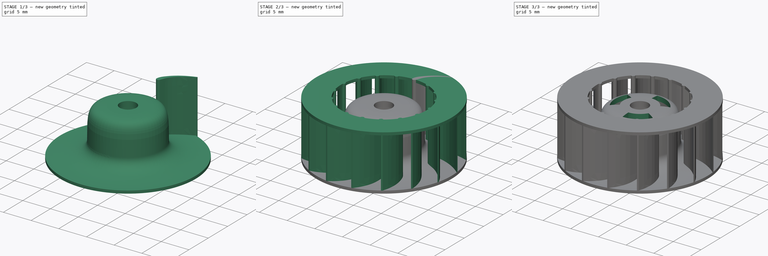
[diagram: build sequence overview — one tinted view per stage of 3, left to right]
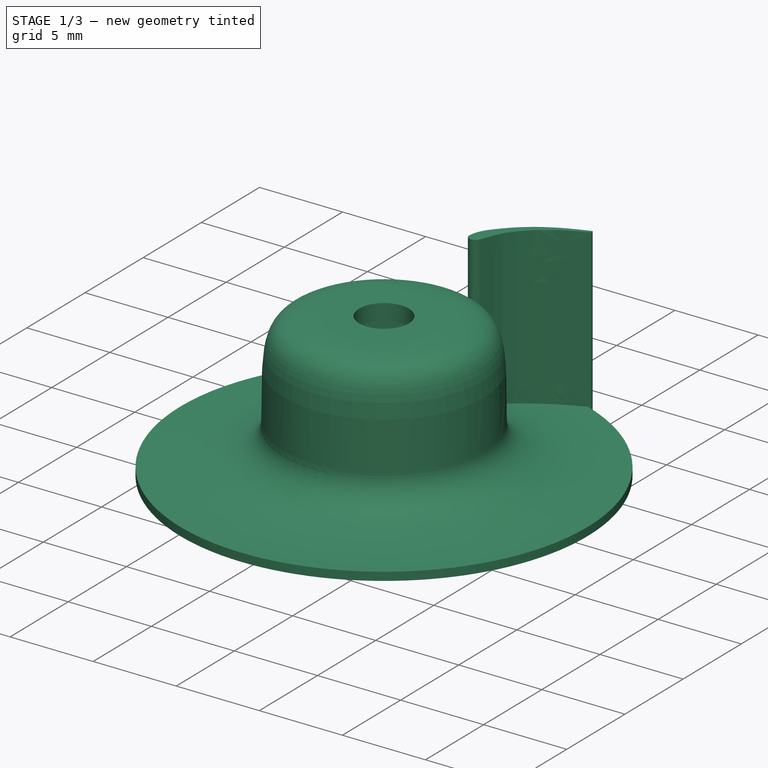
[diagram: stage 1 of 3 — iso view after this stage's code; geometry added in this stage tinted green]
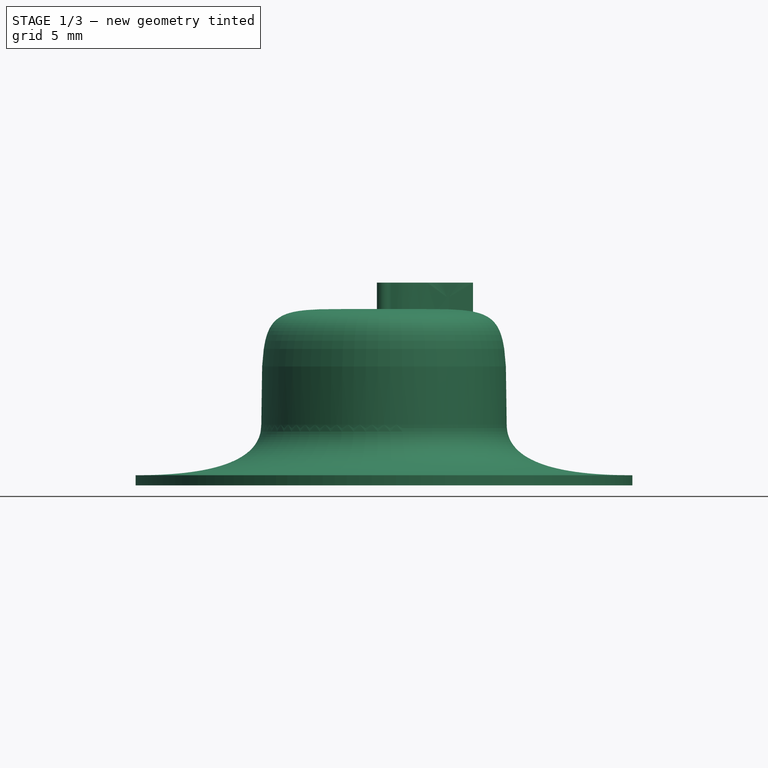
[diagram: stage 1 of 3 — front view after this stage's code; geometry added in this stage tinted green]
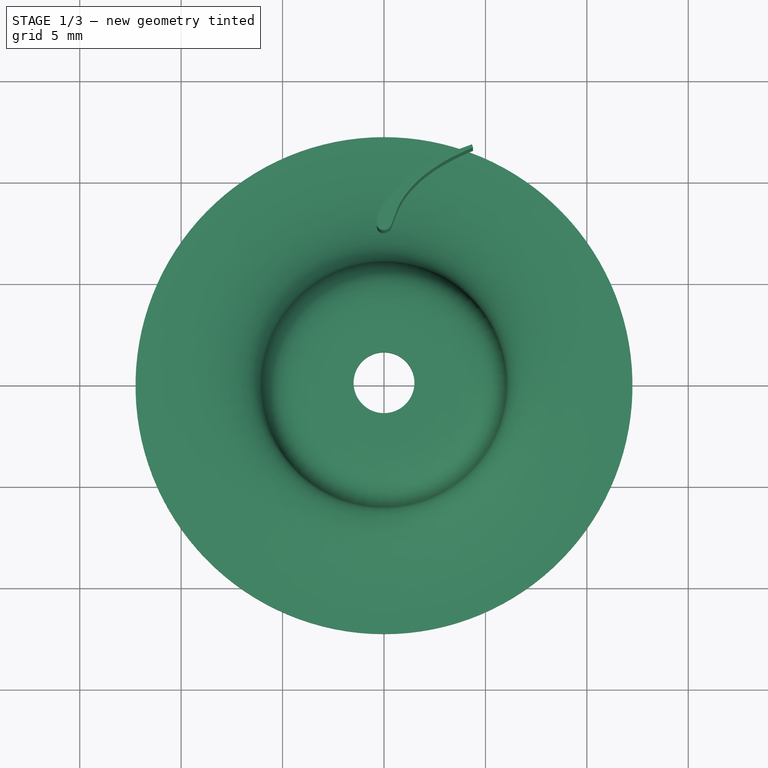
[diagram: stage 1 of 3 — top view after this stage's code; geometry added in this stage tinted green]
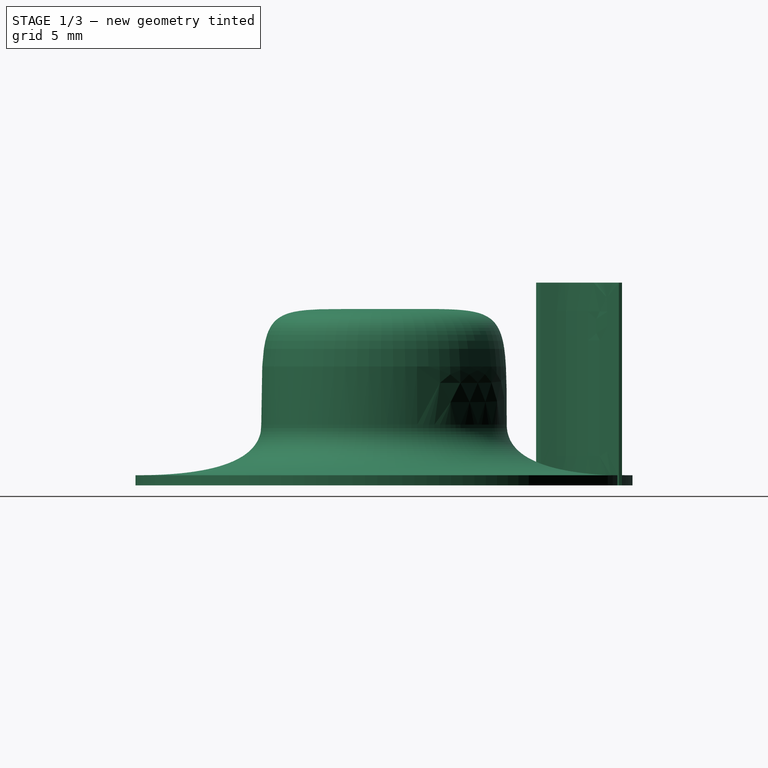
[diagram: stage 1 of 3 — right view after this stage's code; geometry added in this stage tinted green]
FCSTD DOCUMENT  (FreeCAD 0.18.1R)
Label: Turbine
License: All rights reserved
LicenseURL: http://en.wikipedia.org/wiki/All_rights_reserved
objects: Sketcher::SketchObject×5, PartDesign::Pad×2, PartDesign::PolarPattern×2, PartDesign::Pocket×2, PartDesign::Revolution×1, Spreadsheet::Sheet×1, PartDesign::Body×1
note: 18 computed .brp shape members not serialized (recipe doc carries the construction recipe); baked Part::Feature solids carry a one-line shape summary decoded from their .brp

FEATURE [Sketcher::SketchObject] Sketch
  MapMode = 5
  Placement = pos=(0,0,0) rot=(0.57735,0.57735,0.57735;2.0944rad)
  Support = -> [YZ_Plane]
  expr: Constraints[5] = Spreadsheet.Diametre_Turbine / 2
  sketch-geometry (20):
    g0: LineSegment StartX=5.05 StartY=7.7 StartZ=0 EndX=5.05 EndY=2.5 EndZ=0
    g1: LineSegment StartX=5.05 StartY=7.7 StartZ=0 EndX=1.5 EndY=7.7 EndZ=0
    g2: LineSegment StartX=12.25 StartY=0.5 StartZ=0 EndX=12.25 EndY=0 EndZ=0
    g3: LineSegment StartX=12.25 StartY=0 StartZ=0 EndX=8.02938 EndY=0 EndZ=0
    g4: LineSegment StartX=1.5 StartY=7.7 StartZ=0 EndX=1.5 EndY=8.7 EndZ=0
    g5: Circle [constr] CenterX=6.05 CenterY=3 CenterZ=0 NormalX=0 NormalY=0 NormalZ=1 AngleXU=0 Radius=0.4
    g6: Circle [constr] CenterX=6.05 CenterY=0.5 CenterZ=0 NormalX=0 NormalY=0 NormalZ=1 AngleXU=0 Radius=0.4
    g7: Circle [constr] CenterX=12.25 CenterY=0.5 CenterZ=0 NormalX=0 NormalY=0 NormalZ=1 AngleXU=0 Radius=0.4
    g8: BSplineCurve PolesCount=3 KnotsCount=2 Degree=2 IsPeriodic=0
    g9: GeomPoint [constr] X=6.05 Y=3 Z=0
    g10: GeomPoint [constr] X=12.25 Y=0.5 Z=0
    g11-g14: Circle [constr] x4 (B-spline internal-alignment scaffolding for g15; pole/knot coordinates omitted)
    g15: BSplineCurve PolesCount=4 KnotsCount=2 Degree=3 IsPeriodic=0
    g16: GeomPoint [constr] X=6.05 Y=3 Z=0
    g17: GeomPoint [constr] X=1.5 Y=8.7 Z=0
    g18: LineSegment [constr] StartX=5.05 StartY=2.5 StartZ=0 EndX=8.02938 EndY=0 EndZ=0
    g19: ArcOfCircle CenterX=9.50059 CenterY=4.77866 CenterZ=0 NormalX=0 NormalY=0 NormalZ=1 AngleXU=0 Radius=5 StartAngle=3.61479 EndAngle=4.41373
  constraints (47):
    c: Vertical(g0)
    c: Vertical(g2)
    c: Coincident(g3,g2)
    c: Horizontal(g3)
    c: DistanceY(g2,g2) = 0.5
    c: DistanceX(g-2,g2) = 12.25
    c: DistanceX(g-1,g1) = 1.5
    c: Coincident(g4,g1)
    c: Vertical(g4)
    c: DistanceY(g4,g4) = 1
    c: Radius(g5) = 0.4
    c: Equal(g5,g6)
    c: Equal(g5,g7)
    c: Coincident(g8,g2)
    c: InternalAlignment(g5,g8)
    c: InternalAlignment(g6,g8)
    c: InternalAlignment(g7,g8)
    c: InternalAlignment(g9,g8)
    c: InternalAlignment(g10,g8)
    c: Vertical(g6,g8)
    c: Distance(g8,g0) = 1
    c: Horizontal(g6,g2)
    c: DistanceY(g-1,g8) = 3
    c: Coincident(g1,g0)
    c: Horizontal(g1)
    c: Radius(g11) = 0.8
    c: Equal(g11,g12)
    c: Equal(g11,g13)
    c: Equal(g11,g14)
    c: InternalAlignment(g11-g14 -> g15) x4
    c: InternalAlignment(g16,g15)
    c: InternalAlignment(g17,g15)
    c: Coincident(g15,g8)
    c: Vertical(g12,g8)
    c: Coincident(g15,g4)
    c: Horizontal(g13,g4)
    c: Coincident(g13,g12)
    c: Angle(g3,g18) = 2.44346
    c: Coincident(g0,g18)
    c: Coincident(g3,g18)
    c: PointOnObject(g3,g-1)
    c: Distance(g-1,g0) = 5.05
    c: DistanceY(g-1,g0) = 2.5
    c: Distance(g0,g1) = 5.2
    c: Coincident(g19,g0)
    c: Coincident(g19,g3)
    c: Radius(g19) = 5
FEATURE [PartDesign::Revolution] Revolution
  Angle = 360
  Axis = (-2e-16,3e-16,1)
  Base = (0,0,0)
  Placement = pos=(0,0,0) rot=(0.57735,0.57735,0.57735;2.0944rad)
  Profile = -> Sketch
  ReferenceAxis = -> Sketch [V_Axis]
  Reversed = true
FEATURE [Sketcher::SketchObject] Sketch002
  MapMode = 5
  Placement = pos=(0,0,10) rot=(0.707107,0.707107,0;3.14159rad)
  expr: Constraints[2] = Spreadsheet.Diametre_Entree_Air / 2
  expr: Constraints[3] = Spreadsheet.Diametre_Turbine / 2
  sketch-geometry (2):
    g0: Circle CenterX=0 CenterY=0 CenterZ=0 NormalX=0 NormalY=0 NormalZ=1 AngleXU=0 Radius=7.75
    g1: Circle CenterX=0 CenterY=0 CenterZ=0 NormalX=0 NormalY=0 NormalZ=1 AngleXU=0 Radius=12.25
  constraints (4):
    c: Coincident(g0,g-1)
    c: Coincident(g1,g0)
    c: Radius(g0) = 7.75
    c: Radius(g1) = 12.25
FEATURE [Sketcher::SketchObject] Sketch003
  MapMode = 5
  expr: Constraints[2] = Spreadsheet.Diametre_Turbine / 2
  sketch-geometry (2):
    g0: Circle CenterX=0 CenterY=0 CenterZ=0 NormalX=0 NormalY=0 NormalZ=1 AngleXU=0 Radius=12.25
    g1: Circle CenterX=0 CenterY=0 CenterZ=0 NormalX=0 NormalY=0 NormalZ=1 AngleXU=0 Radius=20
  constraints (4):
    c: Coincident(g0,g-1)
    c: Coincident(g1,g0)
    c: Radius(g0) = 12.25
    c: Radius(g1) = 20
FEATURE [Sketcher::SketchObject] Sketch004
  MapMode = 5
  sketch-geometry (6):
    g0: ArcOfCircle CenterX=0 CenterY=0 CenterZ=0 NormalX=0 NormalY=0 NormalZ=1 AngleXU=0 Radius=4.5 StartAngle=0.523599 EndAngle=1.5708
    g1: ArcOfCircle CenterX=0 CenterY=0 CenterZ=0 NormalX=0 NormalY=0 NormalZ=1 AngleXU=0 Radius=3 StartAngle=0.523599 EndAngle=1.5708
    g2: LineSegment StartX=3e-16 StartY=4.5 StartZ=0 EndX=2e-16 EndY=3 EndZ=0
    g3: LineSegment StartX=2.59808 StartY=1.5 StartZ=0 EndX=3.89711 EndY=2.25 EndZ=0
    g4: LineSegment [constr] StartX=0 StartY=0 StartZ=0 EndX=2e-16 EndY=3 EndZ=0
    g5: LineSegment [constr] StartX=0 StartY=0 StartZ=0 EndX=2.59808 EndY=1.5 EndZ=0
  constraints (16):
    c: Coincident(g0,g-1)
    c: Coincident(g1,g0)
    c: Coincident(g2,g0)
    c: Coincident(g2,g1)
    c: Coincident(g3,g1)
    c: Coincident(g4,g0)
    c: Coincident(g4,g1)
    c: Coincident(g5,g0)
    c: Coincident(g5,g1)
    c: Parallel(g4,g2)
    c: Parallel(g5,g3)
    c: Radius(g1) = 3
    c: Radius(g0) = 4.5
    c: PointOnObject(g0,g-2)
    c: Angle(g3,g2) = 1.0472
    c: Coincident(g0,g3)
FEATURE [Spreadsheet::Sheet] Spreadsheet
  cells = B1=Developpante; B2=Angle; C2(Angles_Developpante)=7.2; B3=Diamètre d'entrée d'air; C3(Diametre_Entree_Air)=15.5; B4=Diamètre Turbine; C4(Diametre_Turbine)=24.5; B5=Distance 1; C5(Distance_1_Developpante)==D5 * 3.14159265 / 180 * C3 / 2 - C20 / 2; D5==C2; B6=Distance 2; C6(Distance_2_Developpante)==D6 * 3.14159265 / 180 * C3 / 2 - C21 / 2; D6==C2 + D5; B7=Distance 3; C7(Distance_3_Developpante)==D7 * 3.14159265 / 180 * C3 / 2 - C22 / 2; D7==C2 + D6; B8=Distance 4; C8(Distance_4_Developpante)==D8 * 3.14159265 / 180 * C3 / 2 - C23 / 2; D8==C2 + D7; B9=Distance 5; C9(Distance_5_Developpante)==D9 * 3.14159265 / 180 * C3 / 2 - C24 / 2; D9==C2 + D8; B10=Distance 6; C10(Distance_6_Developpante)==D10 * 3.14159265 / 180 * C3 / 2 - C25 / 2; D10==C2 + D9; B11=Distance 7; C11(Distance_7_Developpante)==D11 * 3.14159265 / 180 * C3 / 2 - C26 / 2; D11==C2 + D10; B12=Distance 8; C12(Distance_8_Developpante)==D12 * 3.14159265 / 180 * C3 / 2 - C27 / 2; D12==C2 + D11; B13=Distance 9; C13(Distance_9_Developpante)==D13 * 3.14159265 / 180 * C3 / 2 - C28 / 2; D13==C2 + D12; B14=Distance 10; C14(Distance_10_Developpante)==D14 * 3.14159265 / 180 * C3 / 2 - C29 / 2; D14==C2 + D13; B15=Distance Max à respecter; C15==sqrt(pow(C4 / 2; 2) - pow(C3 / 2; 2)); B17=Profil; B19=Epaisseur Bord d'attaque; C19=0.8; E19=Profil; B20=Epaisseur 1; C20(Epaisseur_1)==C19 * E20; E20=0.9; B21=Epaisseur 2; C21(Epaisseur_2)==C19 * E21; E21=0.95; B22=Epaisseur 3; C22(Epaisseur_3)==C19 * E22; E22=1; B23=Epaisseur 4; C23(Epaisseur_4)==C19 * E23; E23=0.9; B24=Epaisseur 5; C24(Epaisseur_5)==C19 * E24; E24=0.7; B25=Epaisseur 6; C25(Epaisseur_6)==C19 * E25; E25=0.6; B26=Epaisseur 7; C26(Epaisseur_7)==C19 * E26; E26=0.5; B27=Epaisseur 8; C27(Epaisseur_8)==C19 * E27; E27=0.4; B28=Epaisseur 9; C28(Epaisseur_9)==C19 * E28; E28=0.3; B29=Epaisseur 10; C29(Epaisseur_10)==C19 * E29; E29=0.2
FEATURE [Sketcher::SketchObject] Sketch005
  MapMode = 5
  Support = -> [XY_Plane]
  expr: Constraints[14] = Spreadsheet.Distance_3_Developpante
  expr: Constraints[2] = Spreadsheet.Diametre_Turbine / 2
  expr: Constraints[46] = Spreadsheet.Distance_8_Developpante
  expr: Constraints[60] = Spreadsheet.Distance_2_Developpante
  expr: Constraints[55] = Spreadsheet.Angles_Developpante
  expr: Constraints[32] = Spreadsheet.Angles_Developpante
  expr: Constraints[33] = Spreadsheet.Angles_Developpante
  expr: Constraints[34] = Spreadsheet.Angles_Developpante
  expr: Constraints[56] = Spreadsheet.Angles_Developpante
  expr: Constraints[36] = Spreadsheet.Distance_4_Developpante
  expr: Constraints[57] = Spreadsheet.Angles_Developpante
  expr: Constraints[95] = Spreadsheet.Distance_7_Developpante + Spreadsheet.Epaisseur_7
  expr: Constraints[37] = Spreadsheet.Distance_5_Developpante
  expr: Constraints[47] = Spreadsheet.Distance_9_Developpante
  expr: Constraints[39] = Spreadsheet.Distance_7_Developpante
  expr: Constraints[38] = Spreadsheet.Distance_6_Developpante
  expr: Constraints[61] = Spreadsheet.Distance_1_Developpante
  expr: Constraints[54] = Spreadsheet.Distance_10_Developpante
  expr: Constraints[71] = Spreadsheet.Distance_1_Developpante + Spreadsheet.Epaisseur_1
  expr: Constraints[91] = Spreadsheet.Distance_3_Developpante + Spreadsheet.Epaisseur_3
  expr: Constraints[11] = Spreadsheet.Angles_Developpante
  expr: Constraints[93] = Spreadsheet.Distance_5_Developpante + Spreadsheet.Epaisseur_5
  expr: Constraints[15] = Spreadsheet.Angles_Developpante
  expr: Constraints[92] = Spreadsheet.Distance_4_Developpante + Spreadsheet.Epaisseur_4
  expr: Constraints[35] = Spreadsheet.Angles_Developpante
  expr: Constraints[94] = Spreadsheet.Distance_6_Developpante + Spreadsheet.Epaisseur_6
  expr: Constraints[3] = Spreadsheet.Diametre_Entree_Air / 2
  expr: Constraints[96] = Spreadsheet.Distance_8_Developpante + Spreadsheet.Epaisseur_8
  expr: Constraints[10] = Spreadsheet.Angles_Developpante
  expr: Constraints[97] = Spreadsheet.Distance_9_Developpante + Spreadsheet.Epaisseur_9
  expr: Constraints[89] = Spreadsheet.Distance_2_Developpante + Spreadsheet.Epaisseur_2
  expr: Constraints[98] = Spreadsheet.Distance_10_Developpante + Spreadsheet.Epaisseur_10
  sketch-geometry (80):
    g0: Circle [constr] CenterX=0 CenterY=0 CenterZ=0 NormalX=0 NormalY=0 NormalZ=1 AngleXU=0 Radius=7.75
    g1: Circle [constr] CenterX=0 CenterY=0 CenterZ=0 NormalX=0 NormalY=0 NormalZ=1 AngleXU=0 Radius=12.25
    g2: LineSegment [constr] StartX=0 StartY=0 StartZ=0 EndX=1.92735 EndY=7.50652 EndZ=0
    g3: LineSegment [constr] StartX=0 StartY=0 StartZ=0 EndX=0.971333 EndY=7.68889 EndZ=0
    g4: LineSegment [constr] StartX=0 StartY=0 StartZ=0 EndX=2.85297 EndY=7.20577 EndZ=0
    g5: LineSegment [constr] StartX=2.85297 StartY=7.20577 StartZ=0 EndX=0.508365 EndY=8.13406 EndZ=0
    g6: LineSegment [constr] StartX=0 StartY=0 StartZ=0 EndX=3.73359 EndY=6.79138 EndZ=0
    g7: LineSegment [constr] StartX=3.73359 StartY=6.79138 StartZ=0 EndX=0.635343 EndY=8.49465 EndZ=0
    g8: LineSegment [constr] StartX=0 StartY=0 StartZ=0 EndX=4.55534 EndY=6.26988 EndZ=0
    g9: LineSegment [constr] StartX=4.55534 StartY=6.26988 StartZ=0 EndX=0.842378 EndY=8.9675 EndZ=0
    g10: LineSegment [constr] StartX=0 StartY=0 StartZ=0 EndX=5.30524 EndY=5.64951 EndZ=0
    g11: LineSegment [constr] StartX=5.30524 StartY=5.64951 StartZ=0 EndX=1.22056 EndY=9.48527 EndZ=0
    g12: LineSegment [constr] StartX=0 StartY=0 StartZ=0 EndX=5.97148 EndY=4.94004 EndZ=0
    g13: LineSegment [constr] StartX=5.97148 StartY=4.94004 StartZ=0 EndX=1.75348 EndY=10.0387 EndZ=0
    g14: LineSegment [constr] StartX=0 StartY=0 StartZ=0 EndX=7.01241 EndY=3.29979 EndZ=0
    g15: LineSegment [constr] StartX=0 StartY=0 StartZ=0 EndX=6.54354 EndY=4.15266 EndZ=0
    g16: LineSegment [constr] StartX=7.01241 StartY=3.29979 StartZ=0 EndX=3.33153 EndY=11.1221 EndZ=0
    g17: LineSegment [constr] StartX=6.54354 StartY=4.15266 StartZ=0 EndX=2.45457 EndY=10.5959 EndZ=0
    g18: LineSegment [constr] StartX=0 StartY=0 StartZ=0 EndX=7.37069 EndY=2.39488 EndZ=0
    g19: LineSegment [constr] StartX=7.37069 StartY=2.39488 StartZ=0 EndX=4.38591 EndY=11.5811 EndZ=0
    g20: LineSegment [constr] StartX=-0.327309 StartY=8.08542 StartZ=0 EndX=-0.352043 EndY=7.85607 EndZ=0
    g21: LineSegment [constr] StartX=0.971333 StartY=7.68889 StartZ=0 EndX=0.36228 EndY=7.76583 EndZ=0
    g22: LineSegment [constr] StartX=1.92735 StartY=7.50652 StartZ=0 EndX=0.408814 EndY=7.89641 EndZ=0
    g23: LineSegment [constr] StartX=0.408814 StartY=7.89641 StartZ=0 EndX=0.36228 EndY=7.76583 EndZ=0
    g24: ArcOfCircle CenterX=-0.029762 CenterY=7.82131 CenterZ=0 NormalX=0 NormalY=0 NormalZ=1 AngleXU=0 Radius=0.32415 StartAngle=3.03416 EndAngle=4.58673
    g25: ArcOfCircle CenterX=-0.0195808 CenterY=7.9019 CenterZ=0 NormalX=0 NormalY=0 NormalZ=1 AngleXU=0 Radius=0.405381 StartAngle=4.58672 EndAngle=5.94087
    g26: LineSegment [constr] StartX=-0.029762 StartY=7.82131 StartZ=0 EndX=-0.0703887 EndY=7.49972 EndZ=0
    g27: LineSegment [constr] StartX=0.971333 StartY=7.68889 StartZ=0 EndX=-0.352043 EndY=7.85607 EndZ=0
    g28: LineSegment [constr] StartX=1.92735 StartY=7.50652 StartZ=0 EndX=-0.327309 EndY=8.08542 EndZ=0
    g29: LineSegment [constr] StartX=2.85297 StartY=7.20577 StartZ=0 EndX=-0.235456 EndY=8.42856 EndZ=0
    g30: LineSegment [constr] StartX=3.73359 StartY=6.79138 StartZ=0 EndX=0.00440227 EndY=8.84152 EndZ=0
    g31: LineSegment [constr] StartX=4.55534 StartY=6.26988 StartZ=0 EndX=0.389328 EndY=9.29666 EndZ=0
    g32: LineSegment [constr] StartX=5.30524 StartY=5.64951 StartZ=0 EndX=0.87066 EndY=9.81385 EndZ=0
    g33: LineSegment [constr] StartX=5.97148 StartY=4.94004 StartZ=0 EndX=1.49851 EndY=10.3469 EndZ=0
    g34: LineSegment [constr] StartX=6.54354 StartY=4.15266 StartZ=0 EndX=2.2831 EndY=10.866 EndZ=0
    g35: LineSegment [constr] StartX=7.01241 StartY=3.29979 StartZ=0 EndX=3.22934 EndY=11.3392 EndZ=0
    g36: LineSegment [constr] StartX=7.37069 StartY=2.39488 StartZ=0 EndX=4.33647 EndY=11.7332 EndZ=0
    g37: GeomPoint X=0.36228 Y=7.76583 Z=0
    g38: GeomPoint X=0.36228 Y=7.76583 Z=0
    g39: GeomPoint X=0.408814 Y=7.89641 Z=0
    g40: GeomPoint X=0.408814 Y=7.89641 Z=0
    g41-g50: Circle [constr] x10 (B-spline internal-alignment scaffolding for g51; pole/knot coordinates omitted)
    g51: BSplineCurve PolesCount=10 KnotsCount=8 Degree=3 IsPeriodic=0
    g52-g59: GeomPoint [constr] x8 (B-spline internal-alignment scaffolding for g51; pole/knot coordinates omitted)
    g60-g69: Circle [constr] x10 (B-spline internal-alignment scaffolding for g70; pole/knot coordinates omitted)
    g70: BSplineCurve PolesCount=10 KnotsCount=8 Degree=3 IsPeriodic=0
    g71-g78: GeomPoint [constr] x8 (B-spline internal-alignment scaffolding for g70; pole/knot coordinates omitted)
    g79: LineSegment StartX=4.33647 StartY=11.7332 StartZ=0 EndX=4.38591 EndY=11.5811 EndZ=0
  constraints (156):
    c: Coincident(g0,g-1)
    c: Coincident(g1,g0)
    c: Radius(g1) = 12.25
    c: Radius(g0) = 7.75
    c: Coincident(g2,g-1)
    c: PointOnObject(g2,g0)
    c: Coincident(g3,g-1)
    c: PointOnObject(g3,g0)
    c: Coincident(g4,g3)
    c: PointOnObject(g4,g0)
    c: Angle(g3,g-2) = 0.125664
    c: Angle(g4,g2) = 0.125664
    c: Coincident(g5,g4)
    c: Perpendicular(g4,g5)
    c: Distance(g5) = 2.52168
    c: Angle(g2,g3) = 0.125664
    c: Coincident(g6,g-1)
    c: PointOnObject(g6,g0)
    c: Coincident(g7,g6)
    c: Coincident(g8,g6)
    c: PointOnObject(g8,g0)
    c: Coincident(g9,g8)
    c: Coincident(g10,g6)
    c: PointOnObject(g10,g0)
    c: Coincident(g11,g10)
    c: Coincident(g12,g6)
    c: PointOnObject(g12,g0)
    c: Coincident(g13,g12)
    c: Perpendicular(g6,g7)
    c: Perpendicular(g9,g8)
    c: Perpendicular(g11,g10)
    c: Perpendicular(g13,g12)
    c: Angle(g6,g4) = 0.125664
    c: Angle(g8,g6) = 0.125664
    c: Angle(g10,g8) = 0.125664
    c: Angle(g12,g10) = 0.125664
    c: Distance(g7) = 3.53557
    c: Distance(g9) = 4.58947
    c: Distance(g11) = 5.60336
    c: Distance(g13) = 6.61726
    c: Coincident(g14,g-1)
    c: PointOnObject(g14,g0)
    c: Coincident(g15,g14)
    c: PointOnObject(g15,g0)
    c: Coincident(g16,g14)
    c: Coincident(g17,g15)
    c: Distance(g17) = 7.63115
    c: Distance(g16) = 8.64504
    c: Perpendicular(g16,g14)
    c: Perpendicular(g17,g15)
    c: Coincident(g18,g-1)
    c: PointOnObject(g18,g0)
    c: Coincident(g19,g18)
    c: Perpendicular(g19,g18)
    c: Distance(g19) = 9.65894
    c: Angle(g15,g12) = 0.125664
    c: Angle(g14,g15) = 0.125664
    c: Angle(g18,g14) = 0.125664
    c: Coincident(g21,g3)
    c: Coincident(g22,g2)
    c: Distance(g22) = 1.56779
    c: Distance(g21) = 0.613894
    c: Perpendicular(g2,g22)
    c: Perpendicular(g21,g3)
    c: Coincident(g25,g24)
    c: Tangent(g24,g25)
    c: Tangent(g25,g23)
    c: Coincident(g26,g24)
    c: Coincident(g26,g24)
    c: Coincident(g27,g3)
    c: Perpendicular(g3,g27)
    c: Distance(g27) = 1.33389
    c: Coincident(g28,g2)
    c: Coincident(g29,g4)
    c: Coincident(g30,g6)
    c: Coincident(g31,g8)
    c: Coincident(g32,g10)
    c: Coincident(g33,g12)
    c: Coincident(g34,g15)
    c: Coincident(g35,g14)
    c: Coincident(g36,g18)
    c: Perpendicular(g4,g29)
    c: Perpendicular(g18,g36)
    c: Perpendicular(g14,g35)
    c: Perpendicular(g15,g34)
    c: Perpendicular(g30,g6)
    c: Perpendicular(g8,g31)
    c: Perpendicular(g10,g32)
    c: Perpendicular(g12,g33)
    c: Distance(g28) = 2.32779
    c: Perpendicular(g2,g28)
    c: Distance(g29) = 3.32168
    c: Distance(g30) = 4.25557
    c: Distance(g31) = 5.14947
    c: Distance(g32) = 6.08336
    c: Distance(g33) = 7.01726
    c: Distance(g34) = 7.95115
    c: Distance(g35) = 8.88504
    c: Distance(g36) = 9.81894
    c: Coincident(g25,g21)
    c: Coincident(g37,g25)
    c: Coincident(g38,g23)
    c: Coincident(g39,g23)
    c: Coincident(g40,g22)
    c: Coincident(g39,g40)
    c: Coincident(g38,g25)
    c: Coincident(g20,g27)
    c: Tangent(g24,g20) = -1.5708
    c: Coincident(g20,g28)
    c: Perpendicular(g27,g26)
    c: Coincident(g51,g25)
    c: Radius(g41) = 0.02
    c: Equal(g41,g42)
    c: Coincident(g42,g39)
    c: Equal(g41,g43)
    c: Coincident(g43,g5)
    c: Equal(g41,g44)
    c: Coincident(g44,g7)
    c: Equal(g41,g45)
    c: Coincident(g45,g9)
    c: Equal(g41,g46)
    c: Coincident(g46,g11)
    c: Equal(g41,g47)
    c: Coincident(g47,g13)
    c: Equal(g41,g48)
    c: Coincident(g48,g17)
    c: Equal(g41,g49)
    c: Coincident(g49,g16)
    c: Equal(g41,g50)
    c: Coincident(g51,g19)
    c: InternalAlignment(g41-g50 -> g51) x10
    c: InternalAlignment(g52-g59 -> g51) x8
    c: Coincident(g70,g24)
    c: Radius(g60) = 0.02
    c: Equal(g60,g61)
    c: Coincident(g61,g20)
    c: Equal(g60,g62)
    c: Coincident(g62,g29)
    c: Equal(g60,g63)
    c: Coincident(g63,g30)
    c: Equal(g60,g64)
    c: Coincident(g64,g31)
    c: Equal(g60,g65)
    c: Coincident(g65,g32)
    c: Equal(g60,g66)
    c: Coincident(g66,g33)
    c: Equal(g60,g67)
    c: Coincident(g67,g34)
    c: Equal(g60,g68)
    c: Coincident(g68,g35)
    c: Equal(g60,g69)
    c: Coincident(g70,g36)
    c: InternalAlignment(g60-g69 -> g70) x10
    c: InternalAlignment(g71-g78 -> g70) x8
    c: Coincident(g79,g70)
    c: Coincident(g79,g51)
FEATURE [PartDesign::Pad] Pad
  BaseFeature = -> Revolution
  Length = 10
  Length2 = 100
  Placement = pos=(0,0,0) rot=(0.57735,0.57735,0.57735;2.0944rad)
  Profile = -> Sketch005
  Type = 0
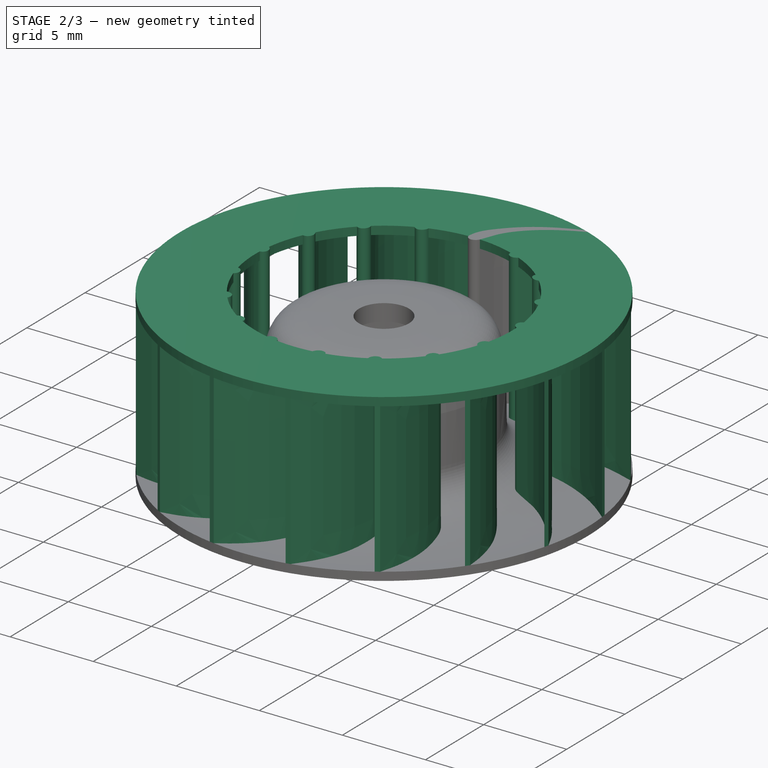
[diagram: stage 2 of 3 — iso view after this stage's code; geometry added in this stage tinted green]
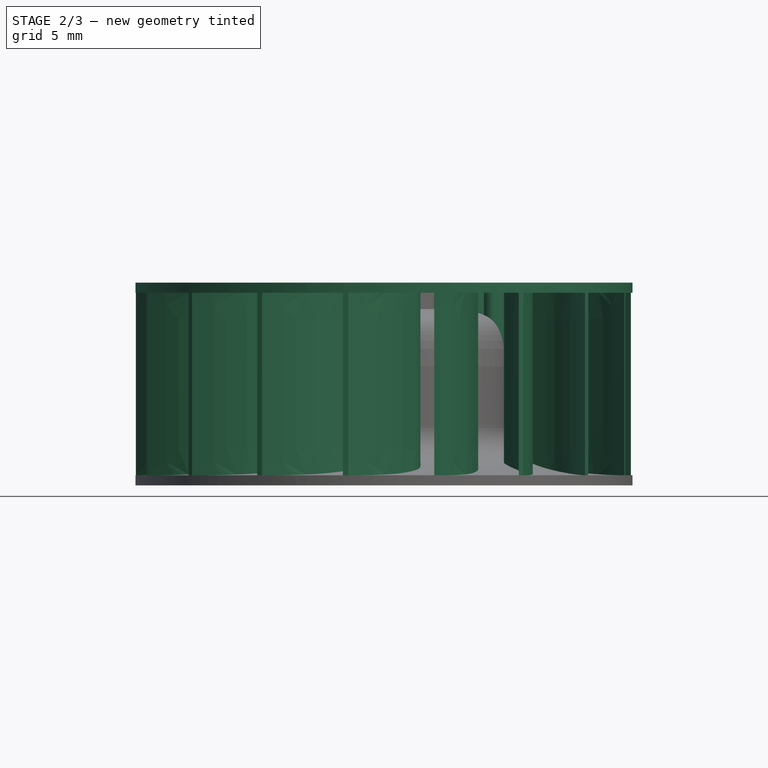
[diagram: stage 2 of 3 — front view after this stage's code; geometry added in this stage tinted green]
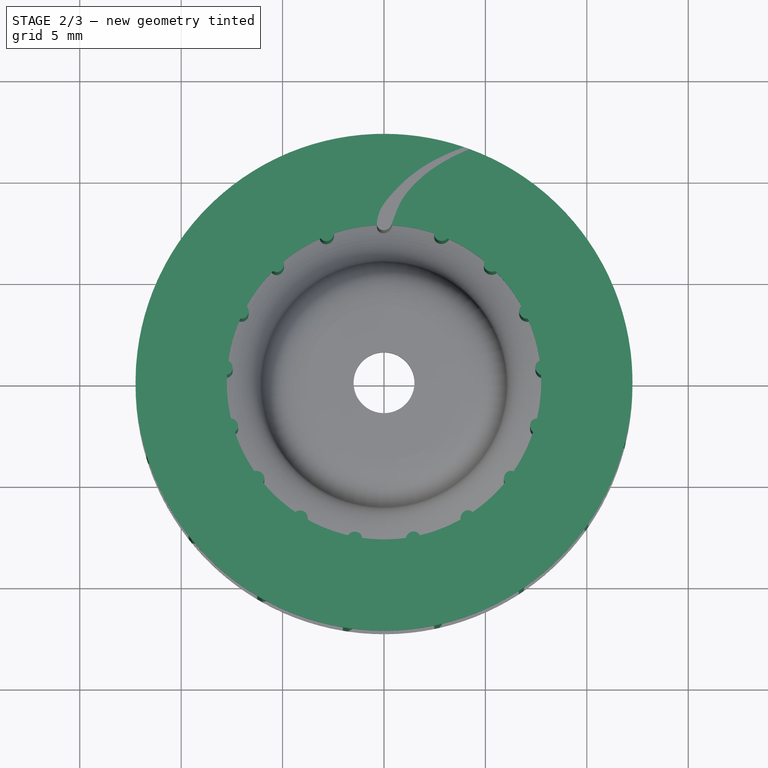
[diagram: stage 2 of 3 — top view after this stage's code; geometry added in this stage tinted green]
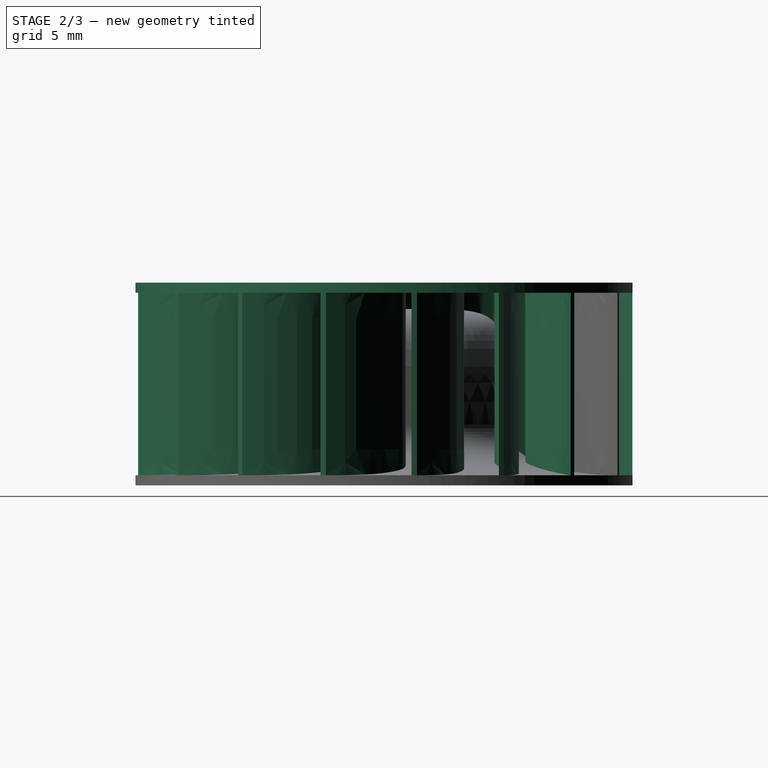
[diagram: stage 2 of 3 — right view after this stage's code; geometry added in this stage tinted green]
FEATURE [PartDesign::PolarPattern] PolarPattern
  Angle = 360
  Axis = -> Sketch005 [N_Axis]
  BaseFeature = -> Pad
  Occurrences = 17
  Originals = -> [Pad]
  Placement = pos=(0,0,0) rot=(0.57735,0.57735,0.57735;2.0944rad)
FEATURE [PartDesign::Pad] Pad001
  BaseFeature = -> PolarPattern
  Length = 0.5
  Length2 = 100
  Placement = pos=(0,0,0) rot=(0.57735,0.57735,0.57735;2.0944rad)
  Profile = -> Sketch002
  Type = 0
FEATURE [PartDesign::Pocket] Pocket
  BaseFeature = -> Pad001
  Length = 5
  Length2 = 100
  Placement = pos=(0,0,0) rot=(0.57735,0.57735,0.57735;2.0944rad)
  Profile = -> Sketch003
  Reversed = true
  Type = 1
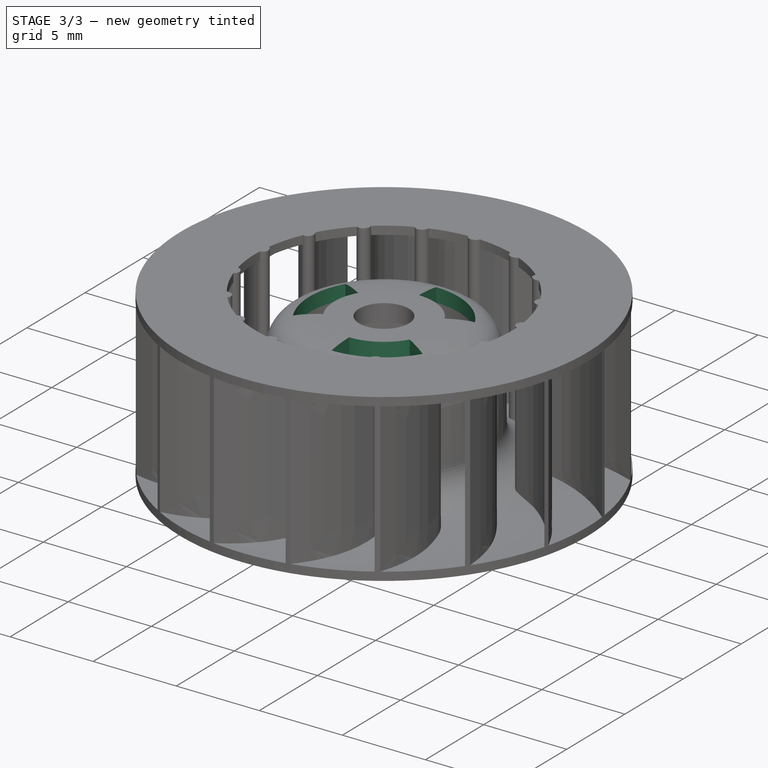
[diagram: stage 3 of 3 — iso view after this stage's code; geometry added in this stage tinted green]
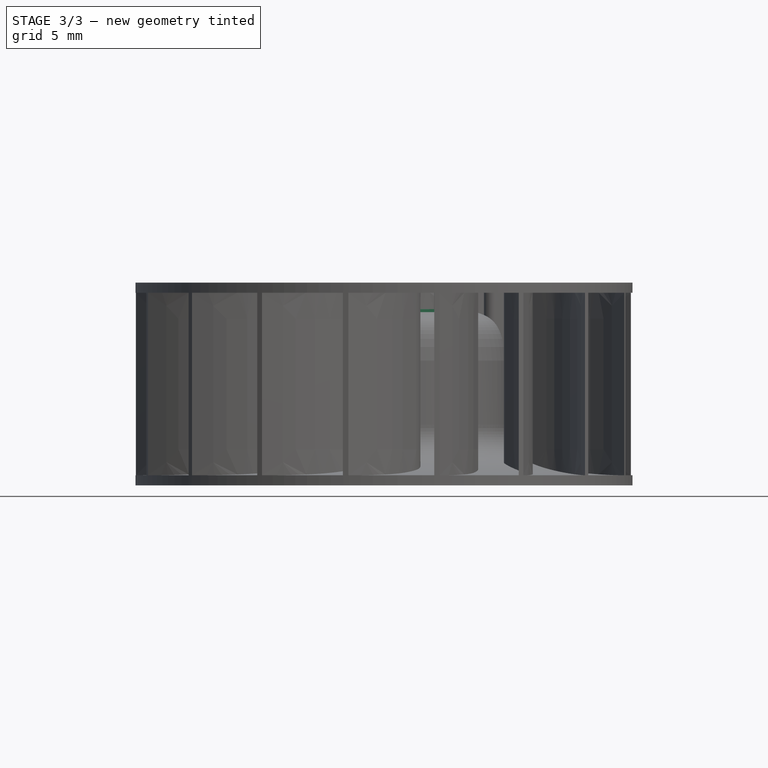
[diagram: stage 3 of 3 — front view after this stage's code; geometry added in this stage tinted green]
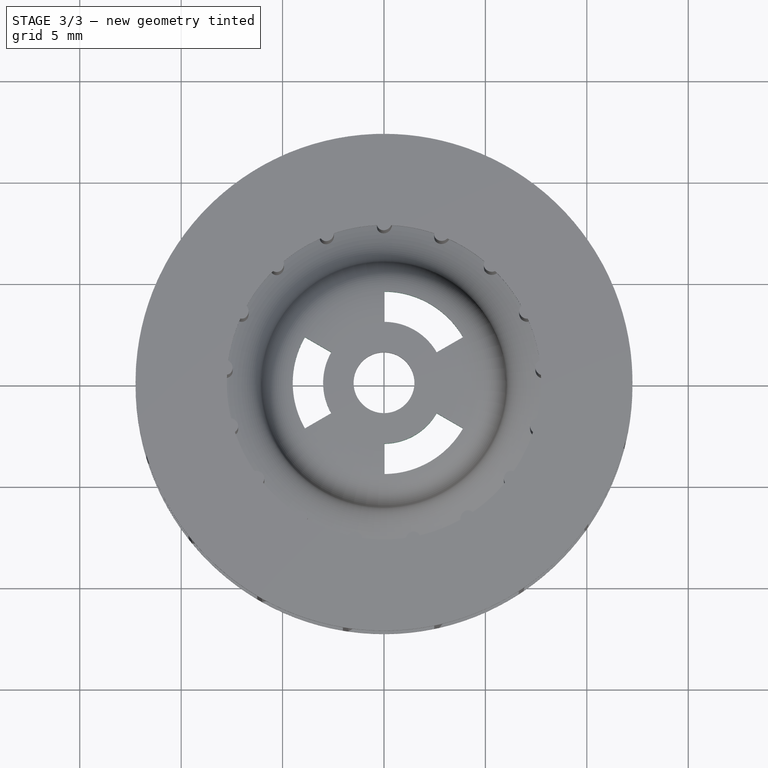
[diagram: stage 3 of 3 — top view after this stage's code; geometry added in this stage tinted green]
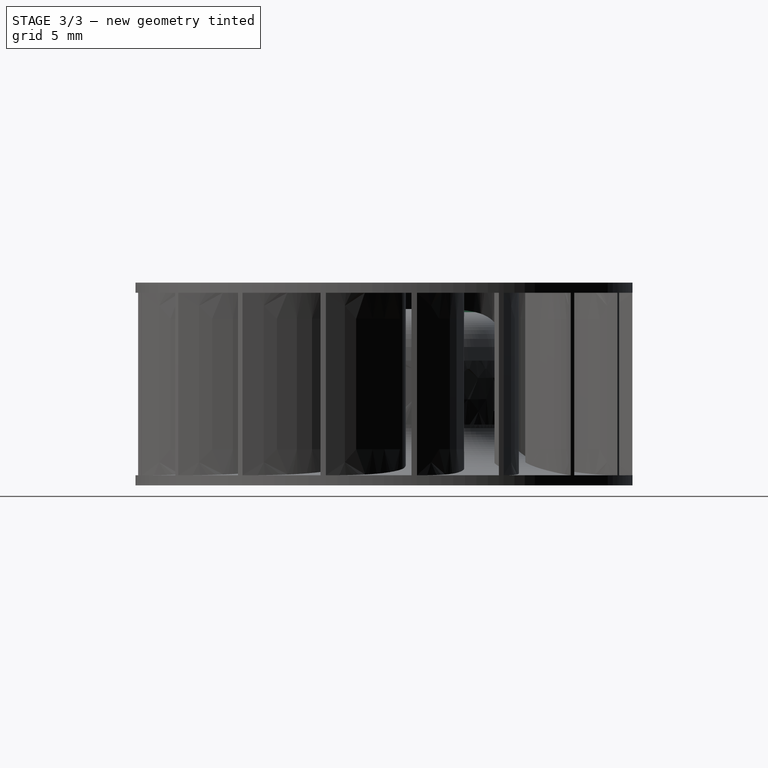
[diagram: stage 3 of 3 — right view after this stage's code; geometry added in this stage tinted green]
FEATURE [PartDesign::Pocket] Pocket001
  BaseFeature = -> Pocket
  Length = 5
  Length2 = 100
  Placement = pos=(0,0,0) rot=(0.57735,0.57735,0.57735;2.0944rad)
  Profile = -> Sketch004
  Reversed = true
  Type = 1
FEATURE [PartDesign::PolarPattern] PolarPattern001
  Angle = 360
  Axis = -> Sketch004 [N_Axis]
  BaseFeature = -> Pocket001
  Occurrences = 3
  Originals = -> [Pocket001]
  Placement = pos=(0,0,0) rot=(0.57735,0.57735,0.57735;2.0944rad)
FEATURE [PartDesign::Body] Body
  Group = -> [Sketch,Revolution,Sketch005,Sketch002,Sketch003,Sketch004,Pad,PolarPattern,Pad001,Pocket,Pocket001,PolarPattern001]
  Origin = -> Origin
  Tip = -> PolarPattern001
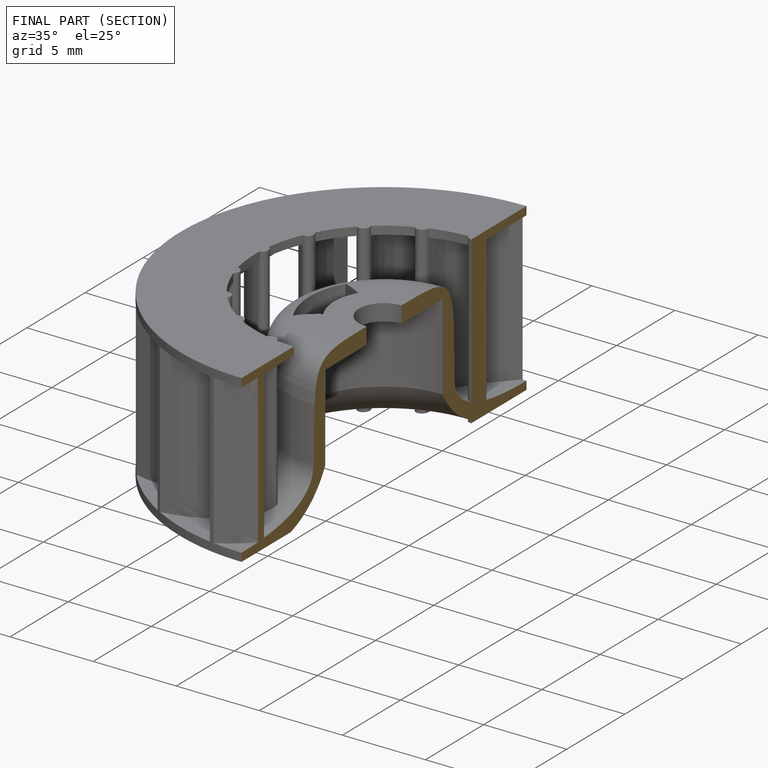
[diagram: finished part — half-section view (interior)]
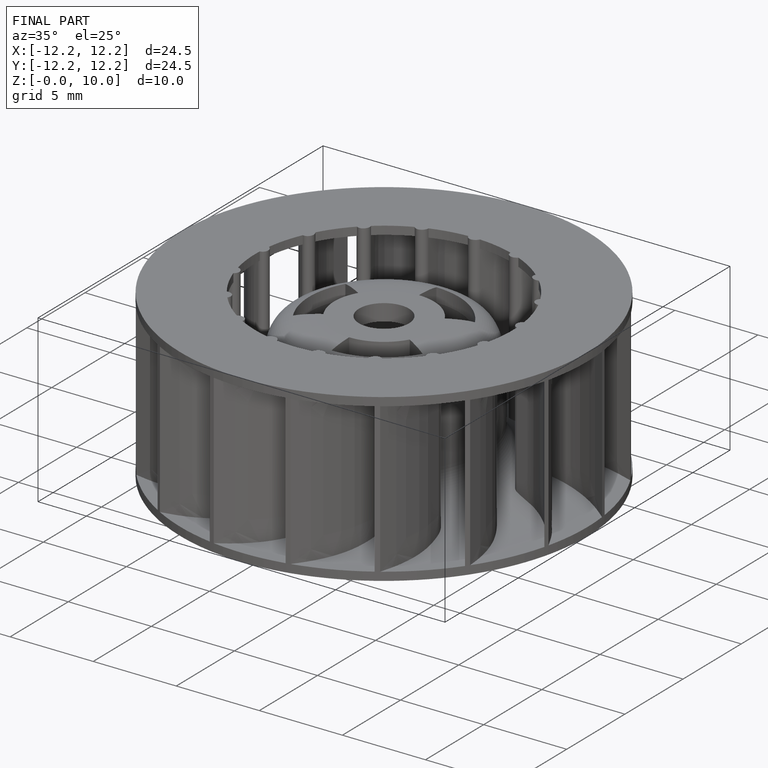
[diagram: finished part — iso view with bounding-box wireframe]
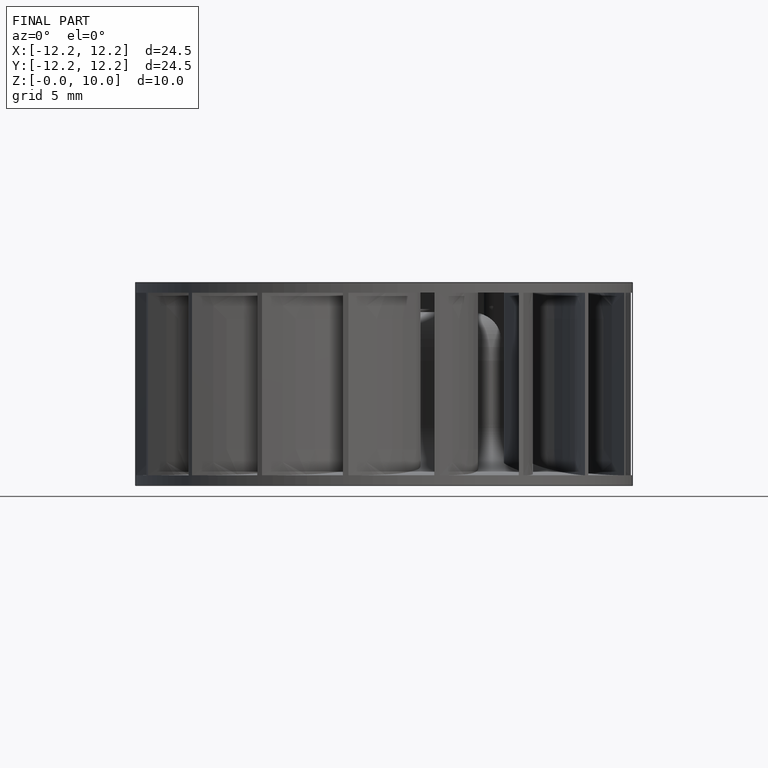
[diagram: finished part — front view with bounding-box wireframe]
